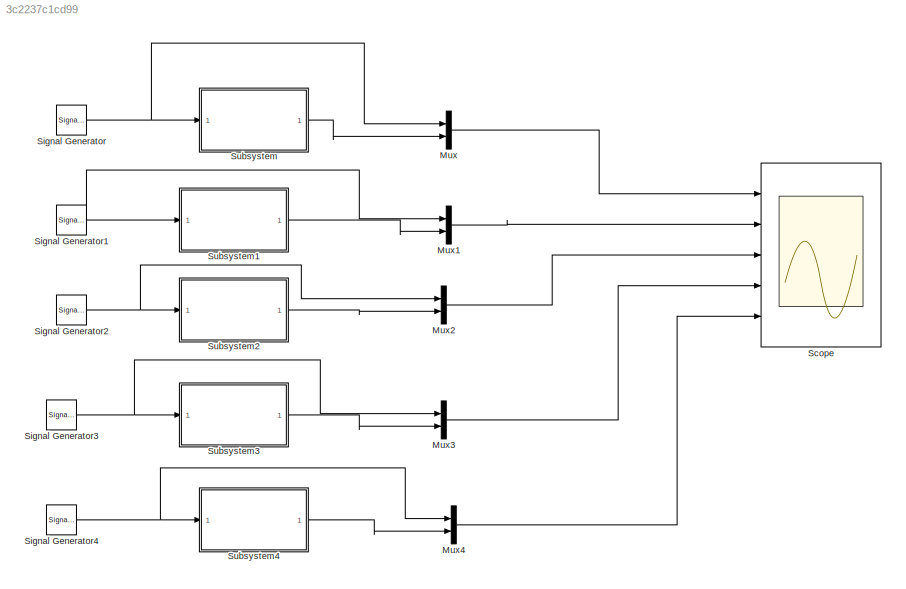
MODEL slx_3c2237c1cd99
KIND model
CONFIG AbsTol = auto
CONFIG EnableMultiTasking = off
CONFIG FixedStep = auto
CONFIG MaxStep = auto
CONFIG MinStep = auto
CONFIG RelTol = 1e-3
CONFIG SampleTimeConstraint = Unconstrained
CONFIG Solver = VariableStepAuto
CONFIG SolverName = VariableStepAuto
CONFIG StartTime = 0.0
CONFIG StopTime = 10.0
BLOCK [Mux] Mux
  DisplayOption = bar
  Inputs = 2
  Ports = [2, 1]
BLOCK [Mux] Mux1
  DisplayOption = bar
  Inputs = 2
  Ports = [2, 1]
BLOCK [Mux] Mux2
  DisplayOption = bar
  Inputs = 2
  Ports = [2, 1]
BLOCK [Mux] Mux3
  DisplayOption = bar
  Inputs = 2
  Ports = [2, 1]
BLOCK [Mux] Mux4
  DisplayOption = bar
  Inputs = 2
  Ports = [2, 1]
BLOCK [Scope] Scope
  Floating = off
  NumInputPorts = 5
  Ports = [5]
  ScopeSpecificationString = Simulink.scopes.TimeScopeBlockCfg('CurrentConfiguration', extmgr.ConfigurationSet(extmgr.Configuration('Core','General UI',true),extmgr.Configuration('Core','Source UI',true),extmgr.Configuration('Sources','WiredSimulink',true),extmgr.Configuration('Visuals','Time Domain',true,'SerializedDisplays',{struct('MinYLimReal','-1.24315','MaxYLimReal','1.24315','YLabelReal','','MinYLimMag','0.00000','MaxY...<+3519ch>
BLOCK [SignalGenerator] Signal Generator
  Frequency = 100
  Ports = [0, 1]
BLOCK [SignalGenerator] Signal Generator1
  Frequency = 200
  Ports = [0, 1]
  Units = rad/sec
BLOCK [SignalGenerator] Signal Generator2
  Frequency = 500
  Ports = [0, 1]
BLOCK [SignalGenerator] Signal Generator3
  Frequency = 700
  Ports = [0, 1]
BLOCK [SignalGenerator] Signal Generator4
  Frequency = 1000
  Ports = [0, 1]
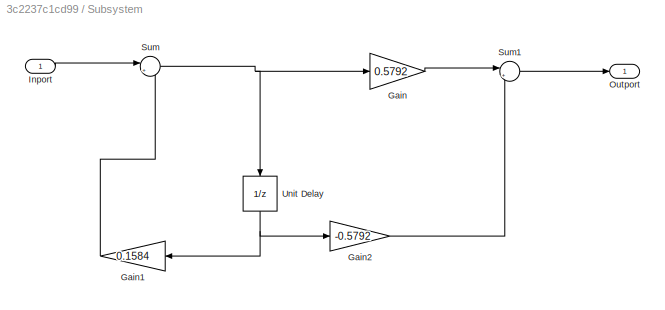
BLOCK [SubSystem] Subsystem
  Ports = [1, 1]
  RequestExecContextInheritance = off
BLOCK [Gain] Subsystem/Gain
  Gain = 0.5792
BLOCK [Gain] Subsystem/Gain1
  Gain = 0.1584
  NameLocation = top
BLOCK [Gain] Subsystem/Gain2
  Gain = -0.5792
BLOCK [Inport] Subsystem/Inport
BLOCK [Outport] Subsystem/Outport
BLOCK [Sum] Subsystem/Sum
  Inputs = |++
  Ports = [2, 1]
BLOCK [Sum] Subsystem/Sum1
  Inputs = |++
  Ports = [2, 1]
BLOCK [UnitDelay] Subsystem/Unit Delay
  HasFrameUpgradeWarning = on
  NameLocation = left
  SampleTime = -1
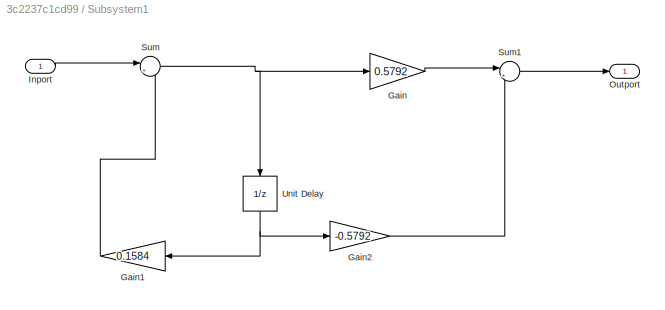
BLOCK [SubSystem] Subsystem1
  Ports = [1, 1]
  RequestExecContextInheritance = off
BLOCK [Gain] Subsystem1/Gain
  Gain = 0.5792
BLOCK [Gain] Subsystem1/Gain1
  Gain = 0.1584
  NameLocation = top
BLOCK [Gain] Subsystem1/Gain2
  Gain = -0.5792
BLOCK [Inport] Subsystem1/Inport
BLOCK [Outport] Subsystem1/Outport
BLOCK [Sum] Subsystem1/Sum
  Inputs = |++
  Ports = [2, 1]
BLOCK [Sum] Subsystem1/Sum1
  Inputs = |++
  Ports = [2, 1]
BLOCK [UnitDelay] Subsystem1/Unit Delay
  HasFrameUpgradeWarning = on
  NameLocation = left
  SampleTime = -1
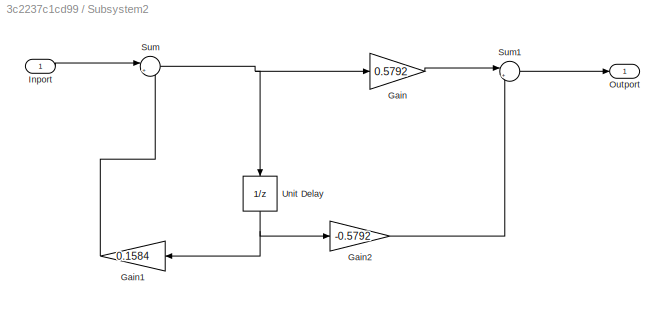
BLOCK [SubSystem] Subsystem2
  Ports = [1, 1]
  RequestExecContextInheritance = off
BLOCK [Gain] Subsystem2/Gain
  Gain = 0.5792
BLOCK [Gain] Subsystem2/Gain1
  Gain = 0.1584
  NameLocation = top
BLOCK [Gain] Subsystem2/Gain2
  Gain = -0.5792
BLOCK [Inport] Subsystem2/Inport
BLOCK [Outport] Subsystem2/Outport
BLOCK [Sum] Subsystem2/Sum
  Inputs = |++
  Ports = [2, 1]
BLOCK [Sum] Subsystem2/Sum1
  Inputs = |++
  Ports = [2, 1]
BLOCK [UnitDelay] Subsystem2/Unit Delay
  HasFrameUpgradeWarning = on
  NameLocation = left
  SampleTime = -1
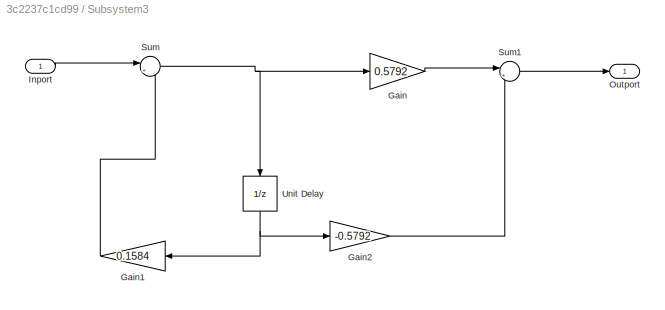
BLOCK [SubSystem] Subsystem3
  Ports = [1, 1]
  RequestExecContextInheritance = off
BLOCK [Gain] Subsystem3/Gain
  Gain = 0.5792
BLOCK [Gain] Subsystem3/Gain1
  Gain = 0.1584
  NameLocation = top
BLOCK [Gain] Subsystem3/Gain2
  Gain = -0.5792
BLOCK [Inport] Subsystem3/Inport
BLOCK [Outport] Subsystem3/Outport
BLOCK [Sum] Subsystem3/Sum
  Inputs = |++
  Ports = [2, 1]
BLOCK [Sum] Subsystem3/Sum1
  Inputs = |++
  Ports = [2, 1]
BLOCK [UnitDelay] Subsystem3/Unit Delay
  HasFrameUpgradeWarning = on
  NameLocation = left
  SampleTime = -1
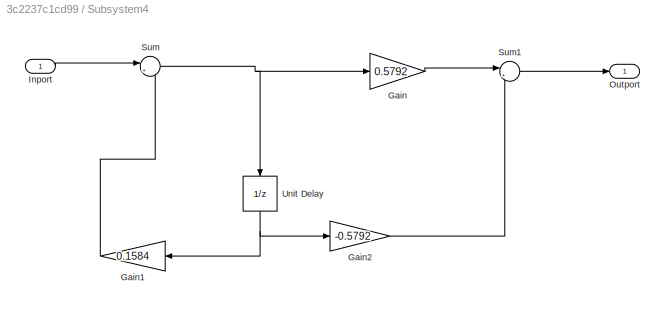
BLOCK [SubSystem] Subsystem4
  Ports = [1, 1]
  RequestExecContextInheritance = off
BLOCK [Gain] Subsystem4/Gain
  Gain = 0.5792
BLOCK [Gain] Subsystem4/Gain1
  Gain = 0.1584
  NameLocation = top
BLOCK [Gain] Subsystem4/Gain2
  Gain = -0.5792
BLOCK [Inport] Subsystem4/Inport
BLOCK [Outport] Subsystem4/Outport
BLOCK [Sum] Subsystem4/Sum
  Inputs = |++
  Ports = [2, 1]
BLOCK [Sum] Subsystem4/Sum1
  Inputs = |++
  Ports = [2, 1]
BLOCK [UnitDelay] Subsystem4/Unit Delay
  HasFrameUpgradeWarning = on
  NameLocation = left
  SampleTime = -1
LINE Mux1:1 -> Scope:2
LINE Mux2:1 -> Scope:3
LINE Mux3:1 -> Scope:4
LINE Mux4:1 -> Scope:5
LINE Mux:1 -> Scope:1
NET Signal Generator1:1 -> Mux1:1, Subsystem1:1
NET Signal Generator2:1 -> Mux2:1, Subsystem2:1
NET Signal Generator3:1 -> Mux3:1, Subsystem3:1
NET Signal Generator4:1 -> Mux4:1, Subsystem4:1
NET Signal Generator:1 -> Mux:1, Subsystem:1
LINE Subsystem/Gain1:1 -> Subsystem/Sum:2
LINE Subsystem/Gain2:1 -> Subsystem/Sum1:2
LINE Subsystem/Gain:1 -> Subsystem/Sum1:1
LINE Subsystem/Inport:1 -> Subsystem/Sum:1
LINE Subsystem/Sum1:1 -> Subsystem/Outport:1
NET Subsystem/Sum:1 -> Subsystem/Gain:1, Subsystem/Unit Delay:1
NET Subsystem/Unit Delay:1 -> Subsystem/Gain1:1, Subsystem/Gain2:1
LINE Subsystem1/Gain1:1 -> Subsystem1/Sum:2
LINE Subsystem1/Gain2:1 -> Subsystem1/Sum1:2
LINE Subsystem1/Gain:1 -> Subsystem1/Sum1:1
LINE Subsystem1/Inport:1 -> Subsystem1/Sum:1
LINE Subsystem1/Sum1:1 -> Subsystem1/Outport:1
NET Subsystem1/Sum:1 -> Subsystem1/Gain:1, Subsystem1/Unit Delay:1
NET Subsystem1/Unit Delay:1 -> Subsystem1/Gain1:1, Subsystem1/Gain2:1
LINE Subsystem1:1 -> Mux1:2
LINE Subsystem2/Gain1:1 -> Subsystem2/Sum:2
LINE Subsystem2/Gain2:1 -> Subsystem2/Sum1:2
LINE Subsystem2/Gain:1 -> Subsystem2/Sum1:1
LINE Subsystem2/Inport:1 -> Subsystem2/Sum:1
LINE Subsystem2/Sum1:1 -> Subsystem2/Outport:1
NET Subsystem2/Sum:1 -> Subsystem2/Gain:1, Subsystem2/Unit Delay:1
NET Subsystem2/Unit Delay:1 -> Subsystem2/Gain1:1, Subsystem2/Gain2:1
LINE Subsystem2:1 -> Mux2:2
LINE Subsystem3/Gain1:1 -> Subsystem3/Sum:2
LINE Subsystem3/Gain2:1 -> Subsystem3/Sum1:2
LINE Subsystem3/Gain:1 -> Subsystem3/Sum1:1
LINE Subsystem3/Inport:1 -> Subsystem3/Sum:1
LINE Subsystem3/Sum1:1 -> Subsystem3/Outport:1
NET Subsystem3/Sum:1 -> Subsystem3/Gain:1, Subsystem3/Unit Delay:1
NET Subsystem3/Unit Delay:1 -> Subsystem3/Gain1:1, Subsystem3/Gain2:1
LINE Subsystem3:1 -> Mux3:2
LINE Subsystem4/Gain1:1 -> Subsystem4/Sum:2
LINE Subsystem4/Gain2:1 -> Subsystem4/Sum1:2
LINE Subsystem4/Gain:1 -> Subsystem4/Sum1:1
LINE Subsystem4/Inport:1 -> Subsystem4/Sum:1
LINE Subsystem4/Sum1:1 -> Subsystem4/Outport:1
NET Subsystem4/Sum:1 -> Subsystem4/Gain:1, Subsystem4/Unit Delay:1
NET Subsystem4/Unit Delay:1 -> Subsystem4/Gain1:1, Subsystem4/Gain2:1
LINE Subsystem4:1 -> Mux4:2
LINE Subsystem:1 -> Mux:2
note: NET lines group one-source signal fan-out (src -> all destinations, sorted); 1:1 wires keep LINE
